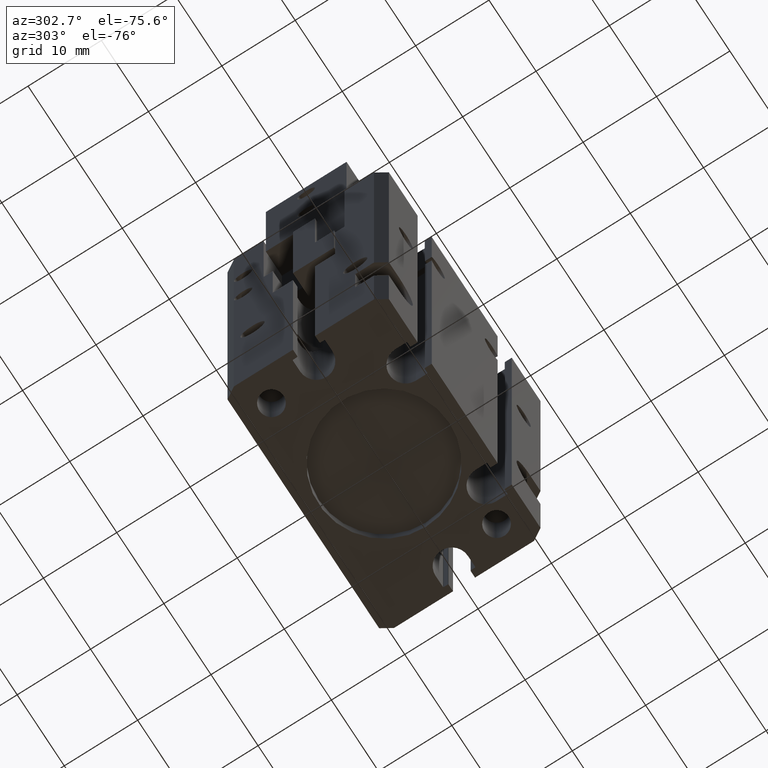
[diagram: clean part render]
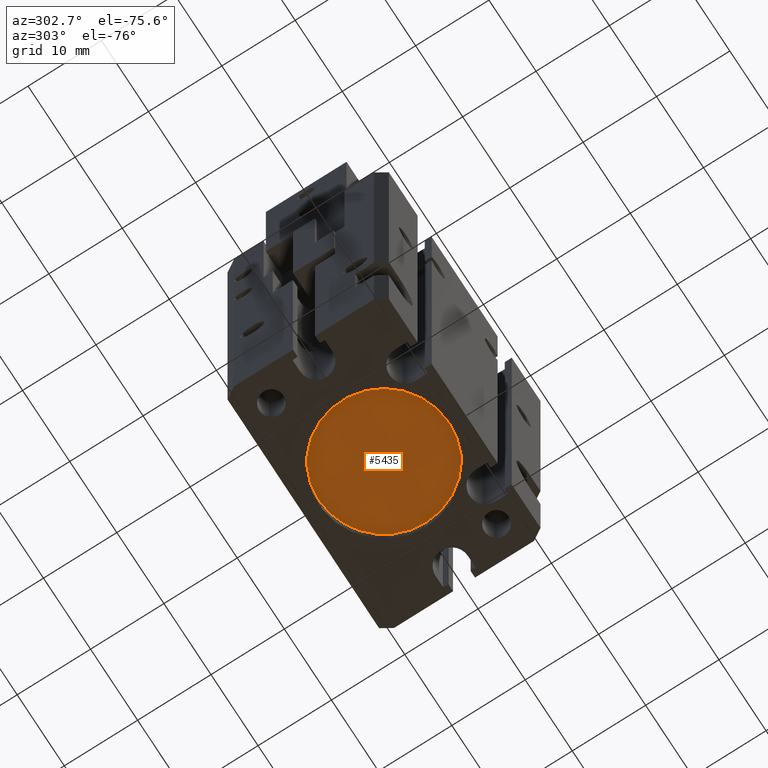
[diagram: same view with one face highlighted and labeled with its STEP entity id]
A machine part, auxiliary view. The second image highlights one B-rep face of the part: STEP entity #5435.
In plain terms, the highlighted planar face has unit normal (0, 0, -1).
Its self-contained STEP definition (entity closure, byte-faithful):
#5410=CARTESIAN_POINT('',(-0.0308966109834412,8.86910338901655,2.));
#5411=VERTEX_POINT('Vertex283',#5410);
#5412=CARTESIAN_POINT('',(8.86910338901653,-0.0308966109834849,2.));
#5413=VERTEX_POINT('Vertex362',#5412);
#5414=CARTESIAN_POINT('',(-0.0308966109834719,-0.0308966109834466,2.));
#5415=DIRECTION('',(1.99590656112388E-016,9.97953280561929E-017,-1.));
#5416=DIRECTION('',(3.44176934143803E-015,1.,1.49692992084291E-016));
#5417=AXIS2_PLACEMENT_3D('',#5414,#5415,#5416);
#5418=CIRCLE('nurbsCrv1413',#5417,8.9);
#5419=EDGE_CURVE('Edge553',#5411,#5413,#5418,.T.);
#5420=ORIENTED_EDGE('Edgeuse1107',*,*,#5419,.T.);
#5421=CARTESIAN_POINT('',(-0.0308966109834795,-0.0308966109834448,2.));
#5422=DIRECTION('',(2.24539488126437E-016,1.4969299208429E-016,-1.));
#5423=DIRECTION('',(1.,-4.5083319100386E-015,2.49488320140484E-016));
#5424=AXIS2_PLACEMENT_3D('',#5421,#5422,#5423);
#5425=CIRCLE('nurbsCrv1414',#5424,8.9);
#5426=EDGE_CURVE('Edge554',#5413,#5411,#5425,.T.);
#5427=ORIENTED_EDGE('Edgeuse1109',*,*,#5426,.T.);
#5428=EDGE_LOOP('',(#5420,#5427));
#5429=FACE_OUTER_BOUND('',#5428,.T.);
#5430=CARTESIAN_POINT('',(-0.0308966109834756,-0.0308966109834472,2.));
#5431=DIRECTION('',(1.81446051011261E-016,1.36084538258445E-016,-1.));
#5432=DIRECTION('',(-1.,1.81446051011261E-016,-1.81446051011261E-016));
#5433=AXIS2_PLACEMENT_3D('',#5430,#5431,#5432);
#5434=PLANE('nurbsSrf139',#5433);
#5435=ADVANCED_FACE('Face139',(#5429),#5434,.T.);